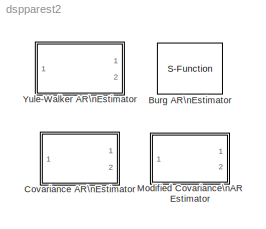
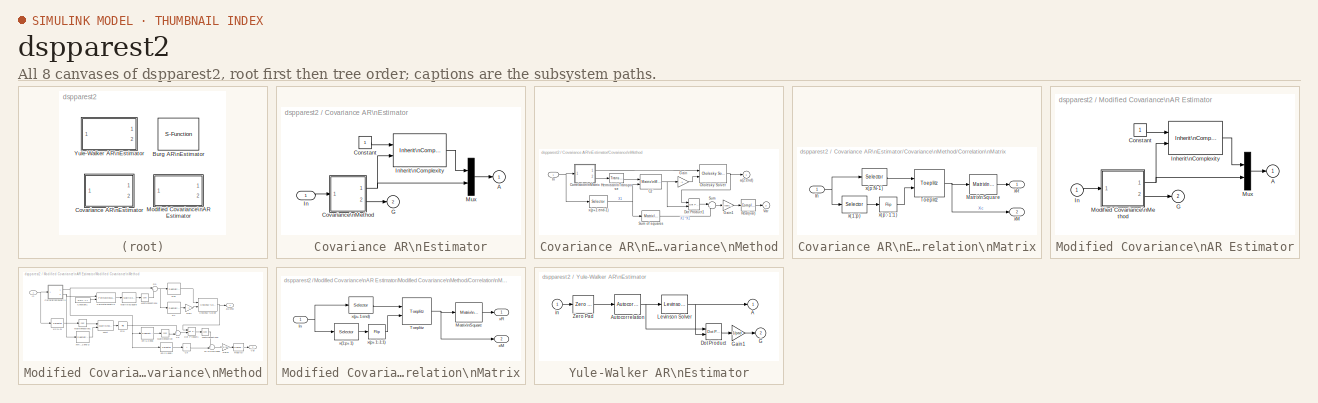
[diagram: thumbnail index - all 8 canvases of the model, root first then tree order]
MODEL dspparest2
KIND library
BLOCK [S-Function] Burg AR\nEstimator
  FunctionName = sdspburg
  MaskCallbackString = |
  MaskDescription = Frame-based parametric AR estimation using the Burg maximum entropy method.  Outputs AR model coefficients A and/or reflection coefficients K, plus the model gain, G.
  MaskDisplay = disp('Burg AR\\nEstimator');\nport_label('output',s.o1,s.o1s);\nport_label('output',s.o2,s.o2s);\nport_label('output',s.o3,s.o3s);\n
  MaskEnableString = on,on
  MaskHelp = web(dspbhelp);
  MaskIconFrame = on
  MaskIconOpaque = on
  MaskIconRotate = none
  MaskIconUnits = autoscale
  MaskInitialization = s = dspblkburg(fcn);\n
  MaskPromptString = Output(s):|Order:
  MaskStyleString = popup(A and K|A|K),edit
  MaskTunableValueString = off,off
  MaskType = Burg AR Estimator
  MaskValueString = A|4
  MaskVariables = fcn=@1;ord=@2;
  MaskVisibilityString = on,on
  Parameters = ord,fcn
  PortCounts = []
  Ports = [1, 2, 0, 0, 0]
  SFunctionModules = ''
BLOCK [SubSystem] Covariance AR\nEstimator
  MaskCallbackString = |
  MaskDescription = Frame-based parametric AR estimation using the Covariance method. The AR model coefficients are given in A and the gain is given in G.
  MaskDisplay = disp('Cov AR\\nEstimator')
  MaskEnableString = on,on
  MaskHelp = web(dspbhelp);
  MaskIconFrame = on
  MaskIconOpaque = off
  MaskIconRotate = none
  MaskIconUnits = autoscale
  MaskPromptString = Input frame size:|Order:
  MaskStyleString = edit,edit
  MaskTunableValueString = off,off
  MaskType = Covariance AR Estimator
  MaskValueString = 10|4
  MaskVariables = bufsiz=@1;ord=@2;
  MaskVisibilityString = on,on
  Ports = [1, 2, 0, 0, 0]
  ShowPortLabels = on
BLOCK [Outport] Covariance AR\nEstimator/A
  InitialOutput = 0
  OutputWhenDisabled = held
  Port = 1
BLOCK [Constant] Covariance AR\nEstimator/Constant
  Value = 1
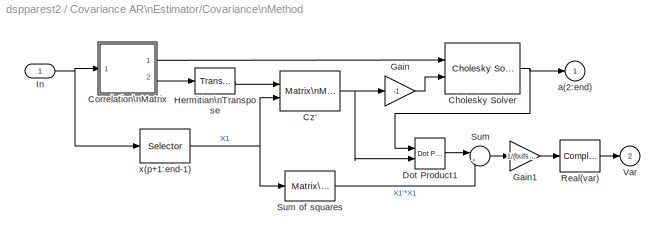
BLOCK [SubSystem] Covariance AR\nEstimator/Covariance\nMethod
  Ports = [1, 2, 0, 0, 0]
  ShowPortLabels = on
BLOCK [Reference] Covariance AR\nEstimator/Covariance\nMethod/Cholesky Solver  REF=dsplinalg/Cholesky Solver
  Ports = [2, 1, 0, 0, 0]
  SourceBlock = dsplinalg/Cholesky Solver
  SourceType = Cholesky Solver
  errmode = Warning
BLOCK [SubSystem] Covariance AR\nEstimator/Covariance\nMethod/Correlation\nMatrix
  Ports = [1, 2, 0, 0, 0]
  ShowPortLabels = on
BLOCK [Inport] Covariance AR\nEstimator/Covariance\nMethod/Correlation\nMatrix/In
  DataType = auto
  Interpolate = on
  Port = 1
  PortWidth = -1
  SampleTime = -1
  SignalType = auto
BLOCK [Reference] Covariance AR\nEstimator/Covariance\nMethod/Correlation\nMatrix/Matrix\nSquare  REF=dspmtrx2/Matrix\nSquare
  Acols = ord
  Ports = [1, 1, 0, 0, 0]
  SourceBlock = dspmtrx2/Matrix\nSquare
  SourceType = Matrix Square
BLOCK [Reference] Covariance AR\nEstimator/Covariance\nMethod/Correlation\nMatrix/Toeplitz  REF=dspmtrx2/Toeplitz
  Ports = [2, 1, 0, 0, 0]
  SourceBlock = dspmtrx2/Toeplitz
  SourceType = Toeplitz
  Symmetric = off
BLOCK [Selector] Covariance AR\nEstimator/Covariance\nMethod/Correlation\nMatrix/x(1:p)
  Elements = 1:ord
  InputPortWidth = bufsiz
BLOCK [Reference] Covariance AR\nEstimator/Covariance\nMethod/Correlation\nMatrix/x(p:-1:1)  REF=dspvect2/Flip
  Ports = [1, 1, 0, 0, 0]
  SourceBlock = dspvect2/Flip
  SourceType = Flip
BLOCK [Selector] Covariance AR\nEstimator/Covariance\nMethod/Correlation\nMatrix/x(p:N-1)
  Elements = ord:bufsiz-1
  InputPortWidth = bufsiz
BLOCK [Outport] Covariance AR\nEstimator/Covariance\nMethod/Correlation\nMatrix/xM
  InitialOutput = []
  OutputWhenDisabled = held
  Port = 2
BLOCK [Outport] Covariance AR\nEstimator/Covariance\nMethod/Correlation\nMatrix/xR
  InitialOutput = []
  OutputWhenDisabled = held
  Port = 1
BLOCK [Reference] Covariance AR\nEstimator/Covariance\nMethod/Cz'  REF=dspmtrx2/Matrix\nMultiplication
  Asize = [ord bufsiz-ord]
  Bcols = 1
  Ports = [2, 1, 0, 0, 0]
  SourceBlock = dspmtrx2/Matrix\nMultiplication
  SourceType = Matrix Multiplication
BLOCK [Reference] Covariance AR\nEstimator/Covariance\nMethod/Dot Product1  REF=simulink3/Math/Dot Product
  Ports = [2, 1, 0, 0, 0]
  SourceBlock = simulink3/Math/Dot Product
  SourceType = Dot Product
BLOCK [Gain] Covariance AR\nEstimator/Covariance\nMethod/Gain
  Gain = -1
  SaturateOnIntegerOverflow = on
BLOCK [Gain] Covariance AR\nEstimator/Covariance\nMethod/Gain1
  Gain = 1/(bufsiz-ord)
  SaturateOnIntegerOverflow = on
BLOCK [Reference] Covariance AR\nEstimator/Covariance\nMethod/Hermitian\nTranspose  REF=dspmtrx2/Transpose
  Asize = ord
  Hermitian = on
  Ports = [1, 1, 0, 0, 0]
  SourceBlock = dspmtrx2/Transpose
  SourceType = Transpose
BLOCK [Inport] Covariance AR\nEstimator/Covariance\nMethod/In
  DataType = auto
  Interpolate = on
  Port = 1
  PortWidth = -1
  SampleTime = -1
  SignalType = auto
BLOCK [ComplexToRealImag] Covariance AR\nEstimator/Covariance\nMethod/Real(var)
  Output = Real
  Ports = [1, 1, 0, 0, 0]
BLOCK [Sum] Covariance AR\nEstimator/Covariance\nMethod/Sum
  IconShape = round
  Inputs = |++
  Ports = [2, 1, 0, 0, 0]
  SaturateOnIntegerOverflow = on
BLOCK [Reference] Covariance AR\nEstimator/Covariance\nMethod/Sum of squares  REF=dspmtrx2/Matrix\nSquare
  Acols = 1
  Ports = [1, 1, 0, 0, 0]
  SourceBlock = dspmtrx2/Matrix\nSquare
  SourceType = Matrix Square
BLOCK [Outport] Covariance AR\nEstimator/Covariance\nMethod/Var
  InitialOutput = 0
  OutputWhenDisabled = held
  Port = 2
BLOCK [Outport] Covariance AR\nEstimator/Covariance\nMethod/a(2:end)
  InitialOutput = 0
  OutputWhenDisabled = held
  Port = 1
BLOCK [Selector] Covariance AR\nEstimator/Covariance\nMethod/x(p+1:end-1)
  Elements = ord+1:bufsiz
  InputPortWidth = bufsiz
BLOCK [Outport] Covariance AR\nEstimator/G
  InitialOutput = 0
  OutputWhenDisabled = held
  Port = 2
BLOCK [Inport] Covariance AR\nEstimator/In
  DataType = auto
  Interpolate = on
  Port = 1
  PortWidth = -1
  SampleTime = -1
  SignalType = auto
BLOCK [Reference] Covariance AR\nEstimator/Inherit\nComplexity  REF=dspelem2/Inherit\nComplexity
  Ports = [2, 1, 0, 0, 0]
  SourceBlock = dspelem2/Inherit\nComplexity
  SourceType = Inherit Complexity
BLOCK [Mux] Covariance AR\nEstimator/Mux
  DisplayOption = bar
  Inputs = 2
  Ports = [2, 1, 0, 0, 0]
BLOCK [SubSystem] Modified Covariance\nAR Estimator
  MaskCallbackString = |
  MaskDescription = Frame-based parametric AR estimation using the Modified Covariance method. The AR model coefficients are given in A and the gain is given in G.
  MaskDisplay = disp('MCov AR\\nEstimator')
  MaskEnableString = on,on
  MaskHelp = web(dspbhelp);
  MaskIconFrame = on
  MaskIconOpaque = off
  MaskIconRotate = none
  MaskIconUnits = autoscale
  MaskPromptString = Input frame size:|Order:
  MaskStyleString = edit,edit
  MaskTunableValueString = off,off
  MaskType = Modified Covariance AR Estimator
  MaskValueString = 10|4
  MaskVariables = bufsiz=@1;ord=@2;
  MaskVisibilityString = on,on
  Ports = [1, 2, 0, 0, 0]
  ShowPortLabels = on
BLOCK [Outport] Modified Covariance\nAR Estimator/A
  InitialOutput = 0
  OutputWhenDisabled = held
  Port = 1
BLOCK [Constant] Modified Covariance\nAR Estimator/Constant
  Value = 1
BLOCK [Outport] Modified Covariance\nAR Estimator/G
  InitialOutput = 0
  OutputWhenDisabled = held
  Port = 2
BLOCK [Inport] Modified Covariance\nAR Estimator/In
  DataType = auto
  Interpolate = on
  Port = 1
  PortWidth = -1
  SampleTime = -1
  SignalType = auto
BLOCK [Reference] Modified Covariance\nAR Estimator/Inherit\nComplexity  REF=dspelem2/Inherit\nComplexity
  Ports = [2, 1, 0, 0, 0]
  SourceBlock = dspelem2/Inherit\nComplexity
  SourceType = Inherit Complexity
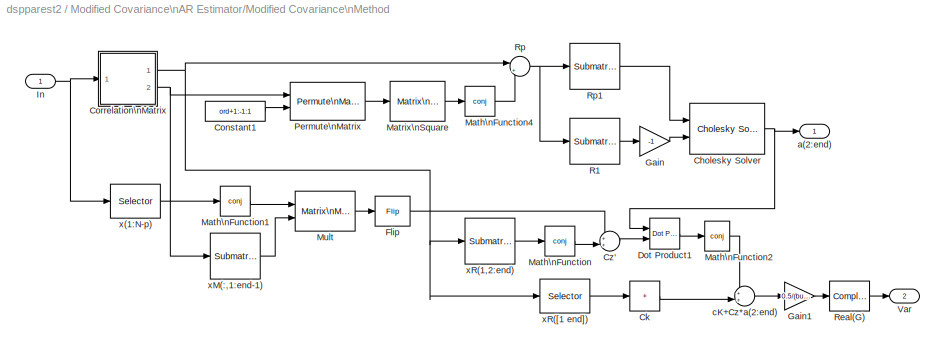
BLOCK [SubSystem] Modified Covariance\nAR Estimator/Modified Covariance\nMethod
  Ports = [1, 2, 0, 0, 0]
  ShowPortLabels = on
BLOCK [Reference] Modified Covariance\nAR Estimator/Modified Covariance\nMethod/Cholesky Solver  REF=dsplinalg/Cholesky Solver
  Ports = [2, 1, 0, 0, 0]
  SourceBlock = dsplinalg/Cholesky Solver
  SourceType = Cholesky Solver
  errmode = Warning
BLOCK [Sum] Modified Covariance\nAR Estimator/Modified Covariance\nMethod/Ck
  IconShape = rectangular
  Inputs = 1
  Ports = [1, 1, 0, 0, 0]
  SaturateOnIntegerOverflow = on
BLOCK [Constant] Modified Covariance\nAR Estimator/Modified Covariance\nMethod/Constant1
  Value = ord+1:-1:1
BLOCK [SubSystem] Modified Covariance\nAR Estimator/Modified Covariance\nMethod/Correlation\nMatrix
  Ports = [1, 2, 0, 0, 0]
  ShowPortLabels = on
BLOCK [Inport] Modified Covariance\nAR Estimator/Modified Covariance\nMethod/Correlation\nMatrix/In
  DataType = auto
  Interpolate = on
  Port = 1
  PortWidth = -1
  SampleTime = -1
  SignalType = auto
BLOCK [Reference] Modified Covariance\nAR Estimator/Modified Covariance\nMethod/Correlation\nMatrix/Matrix\nSquare  REF=dspmtrx2/Matrix\nSquare
  Acols = ord+1
  Ports = [1, 1, 0, 0, 0]
  SourceBlock = dspmtrx2/Matrix\nSquare
  SourceType = Matrix Square
BLOCK [Reference] Modified Covariance\nAR Estimator/Modified Covariance\nMethod/Correlation\nMatrix/Toeplitz  REF=dspmtrx2/Toeplitz
  Ports = [2, 1, 0, 0, 0]
  SourceBlock = dspmtrx2/Toeplitz
  SourceType = Toeplitz
  Symmetric = off
BLOCK [Selector] Modified Covariance\nAR Estimator/Modified Covariance\nMethod/Correlation\nMatrix/x(1:p+1)
  Elements = 1:ord+1
  InputPortWidth = bufsiz
BLOCK [Reference] Modified Covariance\nAR Estimator/Modified Covariance\nMethod/Correlation\nMatrix/x(p+1:-1:1)  REF=dspvect2/Flip
  Ports = [1, 1, 0, 0, 0]
  SourceBlock = dspvect2/Flip
  SourceType = Flip
BLOCK [Selector] Modified Covariance\nAR Estimator/Modified Covariance\nMethod/Correlation\nMatrix/x(p+1:end)
  Elements = ord+1:bufsiz
  InputPortWidth = bufsiz
BLOCK [Outport] Modified Covariance\nAR Estimator/Modified Covariance\nMethod/Correlation\nMatrix/xM
  InitialOutput = []
  OutputWhenDisabled = held
  Port = 2
BLOCK [Outport] Modified Covariance\nAR Estimator/Modified Covariance\nMethod/Correlation\nMatrix/xR
  InitialOutput = []
  OutputWhenDisabled = held
  Port = 1
BLOCK [Sum] Modified Covariance\nAR Estimator/Modified Covariance\nMethod/Cz'
  IconShape = round
  Inputs = ++|
  Ports = [2, 1, 0, 0, 0]
  SaturateOnIntegerOverflow = on
BLOCK [Reference] Modified Covariance\nAR Estimator/Modified Covariance\nMethod/Dot Product1  REF=simulink3/Math/Dot Product
  Ports = [2, 1, 0, 0, 0]
  SourceBlock = simulink3/Math/Dot Product
  SourceType = Dot Product
BLOCK [Reference] Modified Covariance\nAR Estimator/Modified Covariance\nMethod/Flip  REF=dspvect2/Flip
  Ports = [1, 1, 0, 0, 0]
  SourceBlock = dspvect2/Flip
  SourceType = Flip
BLOCK [Gain] Modified Covariance\nAR Estimator/Modified Covariance\nMethod/Gain
  Gain = -1
  SaturateOnIntegerOverflow = on
BLOCK [Gain] Modified Covariance\nAR Estimator/Modified Covariance\nMethod/Gain1
  Gain = 0.5/(bufsiz-ord)
  SaturateOnIntegerOverflow = on
BLOCK [Inport] Modified Covariance\nAR Estimator/Modified Covariance\nMethod/In
  DataType = auto
  Interpolate = on
  Port = 1
  PortWidth = -1
  SampleTime = -1
  SignalType = auto
BLOCK [Math] Modified Covariance\nAR Estimator/Modified Covariance\nMethod/Math\nFunction
  Operator = conj
  OutputSignalType = auto
  Ports = [1, 1, 0, 0, 0]
BLOCK [Math] Modified Covariance\nAR Estimator/Modified Covariance\nMethod/Math\nFunction1
  Operator = conj
  OutputSignalType = auto
  Ports = [1, 1, 0, 0, 0]
BLOCK [Math] Modified Covariance\nAR Estimator/Modified Covariance\nMethod/Math\nFunction2
  Operator = conj
  OutputSignalType = auto
  Ports = [1, 1, 0, 0, 0]
BLOCK [Math] Modified Covariance\nAR Estimator/Modified Covariance\nMethod/Math\nFunction4
  Operator = conj
  OutputSignalType = auto
  Ports = [1, 1, 0, 0, 0]
BLOCK [Reference] Modified Covariance\nAR Estimator/Modified Covariance\nMethod/Matrix\nSquare  REF=dspmtrx2/Matrix\nSquare
  Acols = ord+1
  Ports = [1, 1, 0, 0, 0]
  SourceBlock = dspmtrx2/Matrix\nSquare
  SourceType = Matrix Square
BLOCK [Reference] Modified Covariance\nAR Estimator/Modified Covariance\nMethod/Mult  REF=dspmtrx2/Matrix\nMultiplication
  Asize = [1 bufsiz-ord]
  Bcols = ord
  Ports = [2, 1, 0, 0, 0]
  SourceBlock = dspmtrx2/Matrix\nMultiplication
  SourceType = Matrix Multiplication
BLOCK [Reference] Modified Covariance\nAR Estimator/Modified Covariance\nMethod/Permute\nMatrix  REF=dspmtrx2/Permute\nMatrix
  Ports = [2, 1, 0, 0, 0]
  SourceBlock = dspmtrx2/Permute\nMatrix
  SourceType = Permute Matrix
  cols = ord+1
  errmode = Clip Index
  mode = Columns
BLOCK [Reference] Modified Covariance\nAR Estimator/Modified Covariance\nMethod/R1  REF=dspmtrx2/Submatrix
  Ports = [1, 1, 0, 0, 0]
  SourceBlock = dspmtrx2/Submatrix
  SourceType = Submatrix
  expr = {2:ord+1,1}
  siz = [ord+1 ord+1]
BLOCK [ComplexToRealImag] Modified Covariance\nAR Estimator/Modified Covariance\nMethod/Real(G)
  Output = Real
  Ports = [1, 1, 0, 0, 0]
BLOCK [Sum] Modified Covariance\nAR Estimator/Modified Covariance\nMethod/Rp
  IconShape = round
  Inputs = |++
  Ports = [2, 1, 0, 0, 0]
  SaturateOnIntegerOverflow = on
BLOCK [Reference] Modified Covariance\nAR Estimator/Modified Covariance\nMethod/Rp1  REF=dspmtrx2/Submatrix
  Ports = [1, 1, 0, 0, 0]
  SourceBlock = dspmtrx2/Submatrix
  SourceType = Submatrix
  expr = {2:ord+1, 2:ord+1}
  siz = [ord+1 ord+1]
BLOCK [Outport] Modified Covariance\nAR Estimator/Modified Covariance\nMethod/Var
  InitialOutput = []
  OutputWhenDisabled = held
  Port = 2
BLOCK [Outport] Modified Covariance\nAR Estimator/Modified Covariance\nMethod/a(2:end)
  InitialOutput = []
  OutputWhenDisabled = held
  Port = 1
BLOCK [Sum] Modified Covariance\nAR Estimator/Modified Covariance\nMethod/cK+Cz*a(2:end)
  IconShape = round
  Inputs = ++|
  Ports = [2, 1, 0, 0, 0]
  SaturateOnIntegerOverflow = on
BLOCK [Selector] Modified Covariance\nAR Estimator/Modified Covariance\nMethod/x(1:N-p)
  Elements = 1:bufsiz-ord
  InputPortWidth = bufsiz
BLOCK [Reference] Modified Covariance\nAR Estimator/Modified Covariance\nMethod/xM(:,1:end-1)  REF=dspmtrx2/Submatrix
  Ports = [1, 1, 0, 0, 0]
  SourceBlock = dspmtrx2/Submatrix
  SourceType = Submatrix
  expr = {1:bufsiz-ord, 1:ord}
  siz = [bufsiz-ord ord+1]
BLOCK [Reference] Modified Covariance\nAR Estimator/Modified Covariance\nMethod/xR(1,2:end)  REF=dspmtrx2/Submatrix
  Ports = [1, 1, 0, 0, 0]
  SourceBlock = dspmtrx2/Submatrix
  SourceType = Submatrix
  expr = {1, 2:ord+1}
  siz = [ord+1 ord+1]
BLOCK [Selector] Modified Covariance\nAR Estimator/Modified Covariance\nMethod/xR([1 end])
  Elements = [1 (ord+1)*(ord+1)]
  InputPortWidth = (ord+1)*(ord+1)
BLOCK [Mux] Modified Covariance\nAR Estimator/Mux
  DisplayOption = bar
  Inputs = 2
  Ports = [2, 1, 0, 0, 0]
BLOCK [SubSystem] Yule-Walker AR\nEstimator
  MaskDescription = Frame-based parametric AR estimation using the Yule-Walker method. The AR model coefficients are given in A and the gain is given in G.
  MaskDisplay = disp('Yule AR\\nEstimator')
  MaskEnableString = on
  MaskHelp = web(dspbhelp);
  MaskIconFrame = on
  MaskIconOpaque = off
  MaskIconRotate = none
  MaskIconUnits = autoscale
  MaskInitialization = if ord==-1,\n   pad = -1; acf=-1;\nelse\n   pad = ord+1; acf=ord;\nend\n
  MaskPromptString = Order (-1 for length(u)-1):
  MaskStyleString = edit
  MaskTunableValueString = off
  MaskType = Yule-Walker AR Estimator
  MaskValueString = -1
  MaskVariables = ord=@1;
  MaskVisibilityString = on
  Ports = [1, 2, 0, 0, 0]
  ShowPortLabels = on
BLOCK [Outport] Yule-Walker AR\nEstimator/A
  InitialOutput = 0
  OutputWhenDisabled = held
  Port = 1
BLOCK [Reference] Yule-Walker AR\nEstimator/Autocorrelation  REF=dspvect2/Autocorrelation
  Ports = [1, 1, 0, 0, 0]
  SourceBlock = dspvect2/Autocorrelation
  SourceType = Autocorrelation
  bias = Biased
  maxlag = acf
BLOCK [Reference] Yule-Walker AR\nEstimator/Dot Product  REF=simulink3/Math/Dot Product
  Ports = [2, 1, 0, 0, 0]
  SourceBlock = simulink3/Math/Dot Product
  SourceType = Dot Product
BLOCK [Outport] Yule-Walker AR\nEstimator/G
  InitialOutput = 0
  OutputWhenDisabled = held
  Port = 2
BLOCK [Gain] Yule-Walker AR\nEstimator/Gain1
  Gain = 1/pad
  SaturateOnIntegerOverflow = on
BLOCK [Reference] Yule-Walker AR\nEstimator/Levinson Solver  REF=dsplinalg/Levinson Solver
  Ports = [1, 1, 0, 0, 0]
  SourceBlock = dsplinalg/Levinson Solver
  SourceType = Levinson Solver
  fcn = A
  otype = on
BLOCK [Reference] Yule-Walker AR\nEstimator/Zero Pad  REF=dspbdsp2/Zero Pad
  Ports = [1, 1, 0, 0, 0]
  SourceBlock = dspbdsp2/Zero Pad
  SourceType = Zero Pad
  nchans = 1
  pad = pad
  trunc = off
BLOCK [Inport] Yule-Walker AR\nEstimator/in
  DataType = auto
  Interpolate = on
  Port = 1
  PortWidth = -1
  SampleTime = -1
  SignalType = auto
LINE Covariance AR\nEstimator/Constant:1 -> Covariance AR\nEstimator/Inherit\nComplexity:1
NET Covariance AR\nEstimator/Covariance\nMethod/Cholesky Solver:1 -> Covariance AR\nEstimator/Covariance\nMethod/Dot Product1:1, Covariance AR\nEstimator/Covariance\nMethod/a(2:end):1
NET Covariance AR\nEstimator/Covariance\nMethod/Correlation\nMatrix/In:1 -> Covariance AR\nEstimator/Covariance\nMethod/Correlation\nMatrix/x(1:p):1, Covariance AR\nEstimator/Covariance\nMethod/Correlation\nMatrix/x(p:N-1):1
LINE Covariance AR\nEstimator/Covariance\nMethod/Correlation\nMatrix/Matrix\nSquare:1 -> Covariance AR\nEstimator/Covariance\nMethod/Correlation\nMatrix/xR:1
NET Covariance AR\nEstimator/Covariance\nMethod/Correlation\nMatrix/Toeplitz:1 -> Covariance AR\nEstimator/Covariance\nMethod/Correlation\nMatrix/Matrix\nSquare:1, Covariance AR\nEstimator/Covariance\nMethod/Correlation\nMatrix/xM:1
LINE Covariance AR\nEstimator/Covariance\nMethod/Correlation\nMatrix/x(1:p):1 -> Covariance AR\nEstimator/Covariance\nMethod/Correlation\nMatrix/x(p:-1:1):1
LINE Covariance AR\nEstimator/Covariance\nMethod/Correlation\nMatrix/x(p:-1:1):1 -> Covariance AR\nEstimator/Covariance\nMethod/Correlation\nMatrix/Toeplitz:2
LINE Covariance AR\nEstimator/Covariance\nMethod/Correlation\nMatrix/x(p:N-1):1 -> Covariance AR\nEstimator/Covariance\nMethod/Correlation\nMatrix/Toeplitz:1
LINE Covariance AR\nEstimator/Covariance\nMethod/Correlation\nMatrix:1 -> Covariance AR\nEstimator/Covariance\nMethod/Cholesky Solver:1
LINE Covariance AR\nEstimator/Covariance\nMethod/Correlation\nMatrix:2 -> Covariance AR\nEstimator/Covariance\nMethod/Hermitian\nTranspose:1
NET Covariance AR\nEstimator/Covariance\nMethod/Cz':1 -> Covariance AR\nEstimator/Covariance\nMethod/Dot Product1:2, Covariance AR\nEstimator/Covariance\nMethod/Gain:1
LINE Covariance AR\nEstimator/Covariance\nMethod/Dot Product1:1 -> Covariance AR\nEstimator/Covariance\nMethod/Sum:1
LINE Covariance AR\nEstimator/Covariance\nMethod/Gain1:1 -> Covariance AR\nEstimator/Covariance\nMethod/Real(var):1
LINE Covariance AR\nEstimator/Covariance\nMethod/Gain:1 -> Covariance AR\nEstimator/Covariance\nMethod/Cholesky Solver:2
LINE Covariance AR\nEstimator/Covariance\nMethod/Hermitian\nTranspose:1 -> Covariance AR\nEstimator/Covariance\nMethod/Cz':1
NET Covariance AR\nEstimator/Covariance\nMethod/In:1 -> Covariance AR\nEstimator/Covariance\nMethod/Correlation\nMatrix:1, Covariance AR\nEstimator/Covariance\nMethod/x(p+1:end-1):1
LINE Covariance AR\nEstimator/Covariance\nMethod/Real(var):1 -> Covariance AR\nEstimator/Covariance\nMethod/Var:1
LINE Covariance AR\nEstimator/Covariance\nMethod/Sum of squares:1 -> Covariance AR\nEstimator/Covariance\nMethod/Sum:2
LINE Covariance AR\nEstimator/Covariance\nMethod/Sum:1 -> Covariance AR\nEstimator/Covariance\nMethod/Gain1:1
NET Covariance AR\nEstimator/Covariance\nMethod/x(p+1:end-1):1 -> Covariance AR\nEstimator/Covariance\nMethod/Cz':2, Covariance AR\nEstimator/Covariance\nMethod/Sum of squares:1
NET Covariance AR\nEstimator/Covariance\nMethod:1 -> Covariance AR\nEstimator/Inherit\nComplexity:2, Covariance AR\nEstimator/Mux:2
LINE Covariance AR\nEstimator/Covariance\nMethod:2 -> Covariance AR\nEstimator/G:1
LINE Covariance AR\nEstimator/In:1 -> Covariance AR\nEstimator/Covariance\nMethod:1
LINE Covariance AR\nEstimator/Inherit\nComplexity:1 -> Covariance AR\nEstimator/Mux:1
LINE Covariance AR\nEstimator/Mux:1 -> Covariance AR\nEstimator/A:1
LINE Modified Covariance\nAR Estimator/Constant:1 -> Modified Covariance\nAR Estimator/Inherit\nComplexity:1
LINE Modified Covariance\nAR Estimator/In:1 -> Modified Covariance\nAR Estimator/Modified Covariance\nMethod:1
LINE Modified Covariance\nAR Estimator/Inherit\nComplexity:1 -> Modified Covariance\nAR Estimator/Mux:1
NET Modified Covariance\nAR Estimator/Modified Covariance\nMethod/Cholesky Solver:1 -> Modified Covariance\nAR Estimator/Modified Covariance\nMethod/Dot Product1:1, Modified Covariance\nAR Estimator/Modified Covariance\nMethod/a(2:end):1
LINE Modified Covariance\nAR Estimator/Modified Covariance\nMethod/Ck:1 -> Modified Covariance\nAR Estimator/Modified Covariance\nMethod/cK+Cz*a(2:end):2
LINE Modified Covariance\nAR Estimator/Modified Covariance\nMethod/Constant1:1 -> Modified Covariance\nAR Estimator/Modified Covariance\nMethod/Permute\nMatrix:2
NET Modified Covariance\nAR Estimator/Modified Covariance\nMethod/Correlation\nMatrix/In:1 -> Modified Covariance\nAR Estimator/Modified Covariance\nMethod/Correlation\nMatrix/x(1:p+1):1, Modified Covariance\nAR Estimator/Modified Covariance\nMethod/Correlation\nMatrix/x(p+1:end):1
LINE Modified Covariance\nAR Estimator/Modified Covariance\nMethod/Correlation\nMatrix/Matrix\nSquare:1 -> Modified Covariance\nAR Estimator/Modified Covariance\nMethod/Correlation\nMatrix/xR:1
NET Modified Covariance\nAR Estimator/Modified Covariance\nMethod/Correlation\nMatrix/Toeplitz:1 -> Modified Covariance\nAR Estimator/Modified Covariance\nMethod/Correlation\nMatrix/Matrix\nSquare:1, Modified Covariance\nAR Estimator/Modified Covariance\nMethod/Correlation\nMatrix/xM:1
LINE Modified Covariance\nAR Estimator/Modified Covariance\nMethod/Correlation\nMatrix/x(1:p+1):1 -> Modified Covariance\nAR Estimator/Modified Covariance\nMethod/Correlation\nMatrix/x(p+1:-1:1):1
LINE Modified Covariance\nAR Estimator/Modified Covariance\nMethod/Correlation\nMatrix/x(p+1:-1:1):1 -> Modified Covariance\nAR Estimator/Modified Covariance\nMethod/Correlation\nMatrix/Toeplitz:2
LINE Modified Covariance\nAR Estimator/Modified Covariance\nMethod/Correlation\nMatrix/x(p+1:end):1 -> Modified Covariance\nAR Estimator/Modified Covariance\nMethod/Correlation\nMatrix/Toeplitz:1
NET Modified Covariance\nAR Estimator/Modified Covariance\nMethod/Correlation\nMatrix:1 -> Modified Covariance\nAR Estimator/Modified Covariance\nMethod/Rp:1, Modified Covariance\nAR Estimator/Modified Covariance\nMethod/xR(1,2:end):1, Modified Covariance\nAR Estimator/Modified Covariance\nMethod/xR([1 end]):1
NET Modified Covariance\nAR Estimator/Modified Covariance\nMethod/Correlation\nMatrix:2 -> Modified Covariance\nAR Estimator/Modified Covariance\nMethod/Permute\nMatrix:1, Modified Covariance\nAR Estimator/Modified Covariance\nMethod/xM(:,1:end-1):1
LINE Modified Covariance\nAR Estimator/Modified Covariance\nMethod/Cz':1 -> Modified Covariance\nAR Estimator/Modified Covariance\nMethod/Dot Product1:2
LINE Modified Covariance\nAR Estimator/Modified Covariance\nMethod/Dot Product1:1 -> Modified Covariance\nAR Estimator/Modified Covariance\nMethod/Math\nFunction2:1
LINE Modified Covariance\nAR Estimator/Modified Covariance\nMethod/Flip:1 -> Modified Covariance\nAR Estimator/Modified Covariance\nMethod/Cz':1
LINE Modified Covariance\nAR Estimator/Modified Covariance\nMethod/Gain1:1 -> Modified Covariance\nAR Estimator/Modified Covariance\nMethod/Real(G):1
LINE Modified Covariance\nAR Estimator/Modified Covariance\nMethod/Gain:1 -> Modified Covariance\nAR Estimator/Modified Covariance\nMethod/Cholesky Solver:2
NET Modified Covariance\nAR Estimator/Modified Covariance\nMethod/In:1 -> Modified Covariance\nAR Estimator/Modified Covariance\nMethod/Correlation\nMatrix:1, Modified Covariance\nAR Estimator/Modified Covariance\nMethod/x(1:N-p):1
LINE Modified Covariance\nAR Estimator/Modified Covariance\nMethod/Math\nFunction1:1 -> Modified Covariance\nAR Estimator/Modified Covariance\nMethod/Mult:1
LINE Modified Covariance\nAR Estimator/Modified Covariance\nMethod/Math\nFunction2:1 -> Modified Covariance\nAR Estimator/Modified Covariance\nMethod/cK+Cz*a(2:end):1
LINE Modified Covariance\nAR Estimator/Modified Covariance\nMethod/Math\nFunction4:1 -> Modified Covariance\nAR Estimator/Modified Covariance\nMethod/Rp:2
LINE Modified Covariance\nAR Estimator/Modified Covariance\nMethod/Math\nFunction:1 -> Modified Covariance\nAR Estimator/Modified Covariance\nMethod/Cz':2
LINE Modified Covariance\nAR Estimator/Modified Covariance\nMethod/Matrix\nSquare:1 -> Modified Covariance\nAR Estimator/Modified Covariance\nMethod/Math\nFunction4:1
LINE Modified Covariance\nAR Estimator/Modified Covariance\nMethod/Mult:1 -> Modified Covariance\nAR Estimator/Modified Covariance\nMethod/Flip:1
LINE Modified Covariance\nAR Estimator/Modified Covariance\nMethod/Permute\nMatrix:1 -> Modified Covariance\nAR Estimator/Modified Covariance\nMethod/Matrix\nSquare:1
LINE Modified Covariance\nAR Estimator/Modified Covariance\nMethod/R1:1 -> Modified Covariance\nAR Estimator/Modified Covariance\nMethod/Gain:1
LINE Modified Covariance\nAR Estimator/Modified Covariance\nMethod/Real(G):1 -> Modified Covariance\nAR Estimator/Modified Covariance\nMethod/Var:1
LINE Modified Covariance\nAR Estimator/Modified Covariance\nMethod/Rp1:1 -> Modified Covariance\nAR Estimator/Modified Covariance\nMethod/Cholesky Solver:1
NET Modified Covariance\nAR Estimator/Modified Covariance\nMethod/Rp:1 -> Modified Covariance\nAR Estimator/Modified Covariance\nMethod/R1:1, Modified Covariance\nAR Estimator/Modified Covariance\nMethod/Rp1:1
LINE Modified Covariance\nAR Estimator/Modified Covariance\nMethod/cK+Cz*a(2:end):1 -> Modified Covariance\nAR Estimator/Modified Covariance\nMethod/Gain1:1
LINE Modified Covariance\nAR Estimator/Modified Covariance\nMethod/x(1:N-p):1 -> Modified Covariance\nAR Estimator/Modified Covariance\nMethod/Math\nFunction1:1
LINE Modified Covariance\nAR Estimator/Modified Covariance\nMethod/xM(:,1:end-1):1 -> Modified Covariance\nAR Estimator/Modified Covariance\nMethod/Mult:2
LINE Modified Covariance\nAR Estimator/Modified Covariance\nMethod/xR(1,2:end):1 -> Modified Covariance\nAR Estimator/Modified Covariance\nMethod/Math\nFunction:1
LINE Modified Covariance\nAR Estimator/Modified Covariance\nMethod/xR([1 end]):1 -> Modified Covariance\nAR Estimator/Modified Covariance\nMethod/Ck:1
NET Modified Covariance\nAR Estimator/Modified Covariance\nMethod:1 -> Modified Covariance\nAR Estimator/Inherit\nComplexity:2, Modified Covariance\nAR Estimator/Mux:2
LINE Modified Covariance\nAR Estimator/Modified Covariance\nMethod:2 -> Modified Covariance\nAR Estimator/G:1
LINE Modified Covariance\nAR Estimator/Mux:1 -> Modified Covariance\nAR Estimator/A:1
NET Yule-Walker AR\nEstimator/Autocorrelation:1 -> Yule-Walker AR\nEstimator/Dot Product:1, Yule-Walker AR\nEstimator/Levinson Solver:1
LINE Yule-Walker AR\nEstimator/Dot Product:1 -> Yule-Walker AR\nEstimator/Gain1:1
LINE Yule-Walker AR\nEstimator/Gain1:1 -> Yule-Walker AR\nEstimator/G:1
NET Yule-Walker AR\nEstimator/Levinson Solver:1 -> Yule-Walker AR\nEstimator/A:1, Yule-Walker AR\nEstimator/Dot Product:2
LINE Yule-Walker AR\nEstimator/Zero Pad:1 -> Yule-Walker AR\nEstimator/Autocorrelation:1
LINE Yule-Walker AR\nEstimator/in:1 -> Yule-Walker AR\nEstimator/Zero Pad:1
note: NET lines group one-source signal fan-out (src -> all destinations, sorted); 1:1 wires keep LINE
